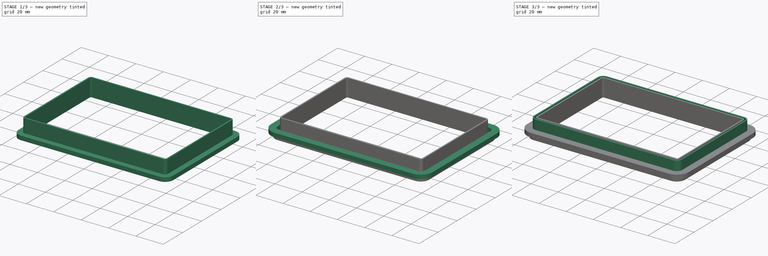
[diagram: build sequence overview — one tinted view per stage of 3, left to right]
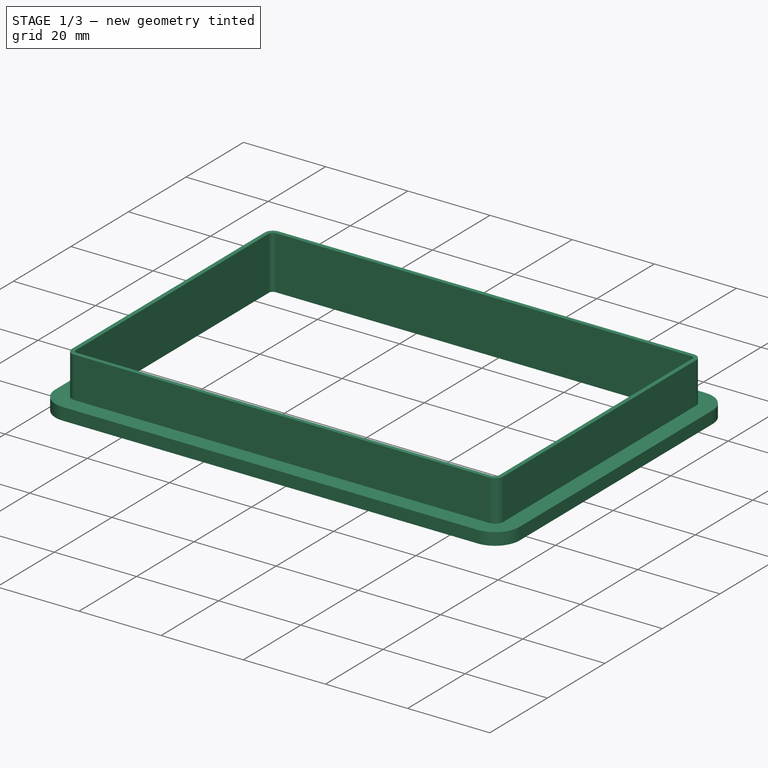
[diagram: stage 1 of 3 — iso view after this stage's code; geometry added in this stage tinted green]
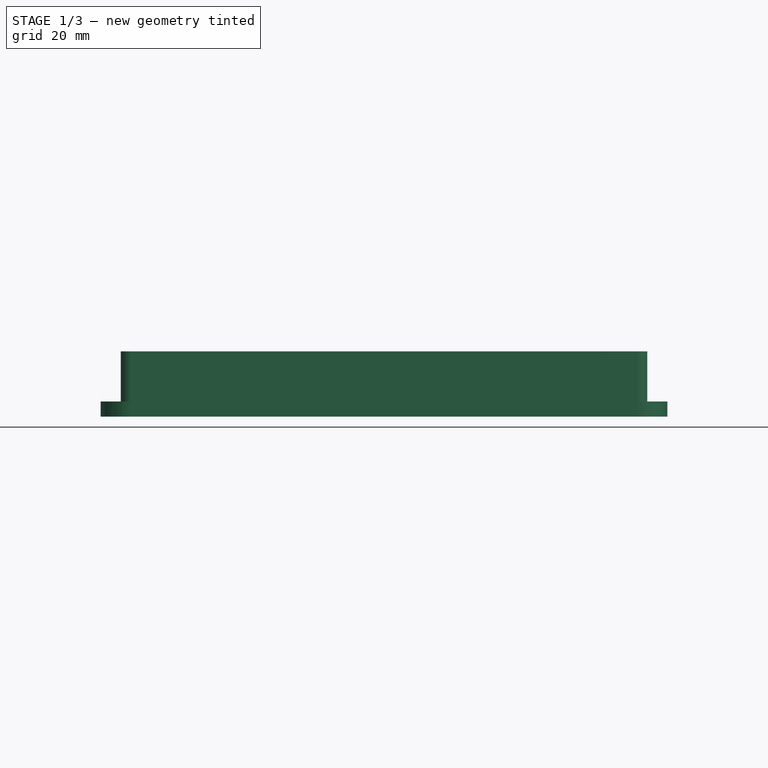
[diagram: stage 1 of 3 — front view after this stage's code; geometry added in this stage tinted green]
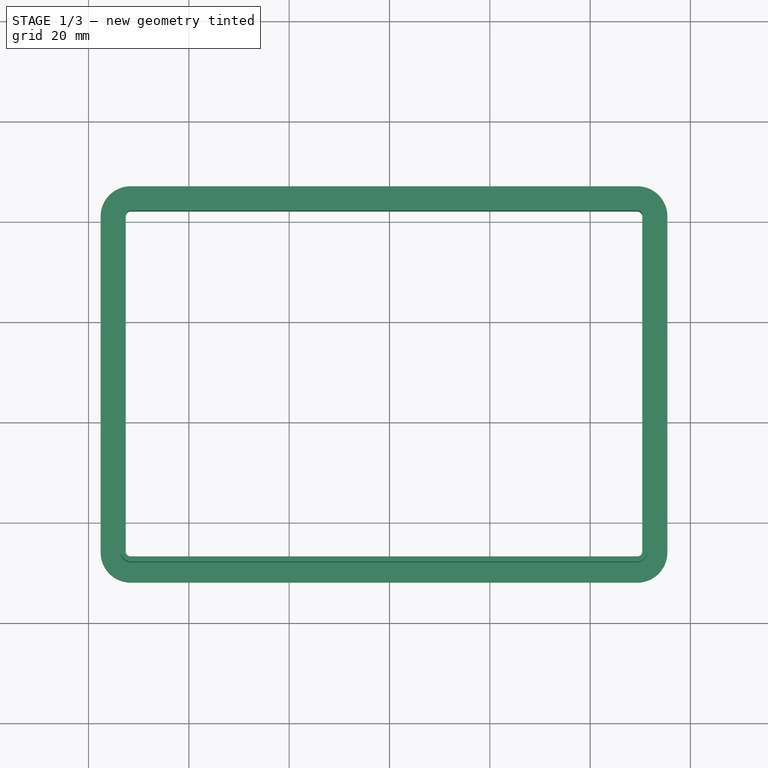
[diagram: stage 1 of 3 — top view after this stage's code; geometry added in this stage tinted green]
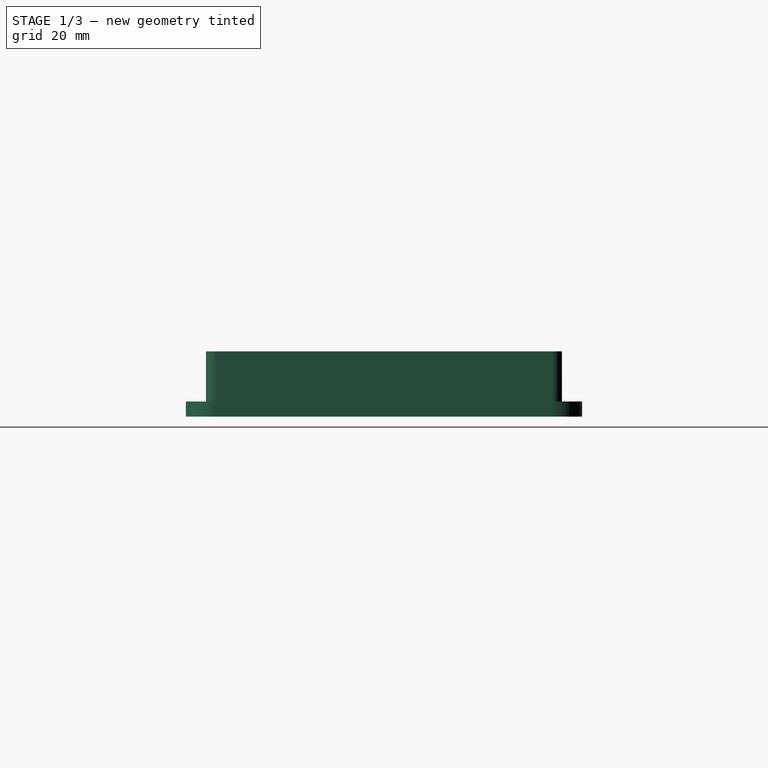
[diagram: stage 1 of 3 — right view after this stage's code; geometry added in this stage tinted green]
FCSTD DOCUMENT  (FreeCAD 1.0R39109 (Git))
Label: CubiertaEnchufeBano
License: All rights reserved
LicenseURL: http://en.wikipedia.org/wiki/All_rights_reserved
objects: Sketcher::SketchObject×12, PartDesign::Pad×4, Part::Offset2D×3, PartDesign::Body×2, PartDesign::Pocket×1
note: 44 computed .brp shape members not serialized (recipe doc carries the construction recipe); baked Part::Feature solids carry a one-line shape summary decoded from their .brp

FEATURE [PartDesign::Body] Body
  AllowCompound = false
  Group = -> [Sketch,Sketch001,Sketch002,Sketch003,Sketch004,Pad,Sketch005,Pad001,Pocket]
  Origin = -> Origin
  Tip = -> Pocket
FEATURE [Part::Offset2D] Offset2D
  Fill = false
  Intersection = false
  Join = 0
  Mode = 1
  SelfIntersection = false
  Source = -> Sketch003
  Value = -2
FEATURE [Sketcher::SketchObject] Sketch006
  ArcFitTolerance = 1e-06
  FullyConstrained = false
  MakeInternals = false
  sketch-geometry (8):
    g0: LineSegment StartX=-33.5962 StartY=41.1063 StartZ=0 EndX=-33.5962 EndY=-25.8937 EndZ=0
    g1: ArcOfCircle CenterX=-31.5962 CenterY=-25.8937 CenterZ=0 NormalX=0 NormalY=0 NormalZ=1 AngleXU=0 Radius=2 StartAngle=3.14159 EndAngle=4.71239
    g2: LineSegment StartX=-31.5962 StartY=-27.8937 StartZ=0 EndX=69.4038 EndY=-27.8937 EndZ=0
    g3: ArcOfCircle CenterX=69.4038 CenterY=-25.8937 CenterZ=0 NormalX=0 NormalY=0 NormalZ=1 AngleXU=0 Radius=2 StartAngle=4.71239 EndAngle=6.28319
    g4: LineSegment StartX=71.4038 StartY=-25.8937 StartZ=0 EndX=71.4038 EndY=41.1063 EndZ=0
    g5: ArcOfCircle CenterX=69.4038 CenterY=41.1063 CenterZ=0 NormalX=0 NormalY=0 NormalZ=1 AngleXU=0 Radius=2 StartAngle=0 EndAngle=1.5708
    g6: LineSegment StartX=69.4038 StartY=43.1063 StartZ=0 EndX=-31.5962 EndY=43.1063 EndZ=0
    g7: ArcOfCircle CenterX=-31.5962 CenterY=41.1063 CenterZ=0 NormalX=0 NormalY=0 NormalZ=1 AngleXU=0 Radius=2 StartAngle=1.5708 EndAngle=3.14159
  constraints (12):
    c: Vertical(g0)
    c: Coincident(g0,g1)
    c: Coincident(g1,g2)
    c: Horizontal(g2)
    c: Coincident(g2,g3)
    c: Coincident(g3,g4)
    c: Vertical(g4)
    c: Coincident(g4,g5)
    c: Coincident(g5,g6)
    c: Horizontal(g6)
    c: Coincident(g6,g7)
    c: Coincident(g7,g0)
FEATURE [Part::Offset2D] Offset2D001
  Fill = false
  Intersection = false
  Join = 0
  Mode = 1
  SelfIntersection = false
  Source = -> Sketch006
  Value = -1
FEATURE [Sketcher::SketchObject] Sketch007
  ArcFitTolerance = 1e-06
  FullyConstrained = false
  MakeInternals = false
  sketch-geometry (8):
    g0: LineSegment StartX=-33.5962 StartY=41.1063 StartZ=0 EndX=-33.5962 EndY=-25.8937 EndZ=0
    g1: ArcOfCircle CenterX=-31.5962 CenterY=-25.8937 CenterZ=0 NormalX=0 NormalY=0 NormalZ=1 AngleXU=0 Radius=2 StartAngle=3.14159 EndAngle=4.71239
    g2: LineSegment StartX=-31.5962 StartY=-27.8937 StartZ=0 EndX=69.4038 EndY=-27.8937 EndZ=0
    g3: ArcOfCircle CenterX=69.4038 CenterY=-25.8937 CenterZ=0 NormalX=0 NormalY=0 NormalZ=1 AngleXU=0 Radius=2 StartAngle=4.71239 EndAngle=6.28319
    g4: LineSegment StartX=71.4038 StartY=-25.8937 StartZ=0 EndX=71.4038 EndY=41.1063 EndZ=0
    g5: ArcOfCircle CenterX=69.4038 CenterY=41.1063 CenterZ=0 NormalX=0 NormalY=0 NormalZ=1 AngleXU=0 Radius=2 StartAngle=0 EndAngle=1.5708
    g6: LineSegment StartX=69.4038 StartY=43.1063 StartZ=0 EndX=-31.5962 EndY=43.1063 EndZ=0
    g7: ArcOfCircle CenterX=-31.5962 CenterY=41.1063 CenterZ=0 NormalX=0 NormalY=0 NormalZ=1 AngleXU=0 Radius=2 StartAngle=1.5708 EndAngle=3.14159
  constraints (12):
    c: Vertical(g0)
    c: Coincident(g0,g1)
    c: Coincident(g1,g2)
    c: Horizontal(g2)
    c: Coincident(g2,g3)
    c: Coincident(g3,g4)
    c: Vertical(g4)
    c: Coincident(g4,g5)
    c: Coincident(g5,g6)
    c: Horizontal(g6)
    c: Coincident(g6,g7)
    c: Coincident(g7,g0)
FEATURE [Sketcher::SketchObject] Sketch008
  ArcFitTolerance = 1e-06
  FullyConstrained = false
  MakeInternals = false
  sketch-geometry (8):
    g0: LineSegment StartX=-32.5962 StartY=41.1063 StartZ=0 EndX=-32.5962 EndY=-25.8937 EndZ=0
    g1: ArcOfCircle CenterX=-31.5962 CenterY=-25.8937 CenterZ=0 NormalX=0 NormalY=0 NormalZ=1 AngleXU=0 Radius=1 StartAngle=3.14159 EndAngle=4.71239
    g2: LineSegment StartX=-31.5962 StartY=-26.8937 StartZ=0 EndX=69.4038 EndY=-26.8937 EndZ=0
    g3: ArcOfCircle CenterX=69.4038 CenterY=-25.8937 CenterZ=0 NormalX=0 NormalY=0 NormalZ=1 AngleXU=0 Radius=1 StartAngle=4.71239 EndAngle=6.28319
    g4: LineSegment StartX=70.4038 StartY=-25.8937 StartZ=0 EndX=70.4038 EndY=41.1063 EndZ=0
    g5: ArcOfCircle CenterX=69.4038 CenterY=41.1063 CenterZ=0 NormalX=0 NormalY=0 NormalZ=1 AngleXU=0 Radius=1 StartAngle=0 EndAngle=1.5708
    g6: LineSegment StartX=69.4038 StartY=42.1063 StartZ=0 EndX=-31.5962 EndY=42.1063 EndZ=0
    g7: ArcOfCircle CenterX=-31.5962 CenterY=41.1063 CenterZ=0 NormalX=0 NormalY=0 NormalZ=1 AngleXU=0 Radius=1 StartAngle=1.5708 EndAngle=3.14159
  constraints (12):
    c: Vertical(g0)
    c: Coincident(g0,g1)
    c: Coincident(g1,g2)
    c: Horizontal(g2)
    c: Coincident(g2,g3)
    c: Coincident(g3,g4)
    c: Vertical(g4)
    c: Coincident(g4,g5)
    c: Coincident(g5,g6)
    c: Horizontal(g6)
    c: Coincident(g6,g7)
    c: Coincident(g7,g0)
FEATURE [Sketcher::SketchObject] Sketch009
  ArcFitTolerance = 1e-06
  FullyConstrained = false
  MakeInternals = false
  sketch-geometry (16):
    g0: LineSegment StartX=-33.5962 StartY=41.1063 StartZ=0 EndX=-33.5962 EndY=-25.8937 EndZ=0
    g1: ArcOfCircle CenterX=-31.5962 CenterY=-25.8937 CenterZ=0 NormalX=0 NormalY=0 NormalZ=1 AngleXU=0 Radius=2 StartAngle=3.14159 EndAngle=4.71239
    g2: LineSegment StartX=-31.5962 StartY=-27.8937 StartZ=0 EndX=69.4038 EndY=-27.8937 EndZ=0
    g3: ArcOfCircle CenterX=69.4038 CenterY=-25.8937 CenterZ=0 NormalX=0 NormalY=0 NormalZ=1 AngleXU=0 Radius=2 StartAngle=4.71239 EndAngle=6.28319
    g4: LineSegment StartX=71.4038 StartY=-25.8937 StartZ=0 EndX=71.4038 EndY=41.1063 EndZ=0
    g5: ArcOfCircle CenterX=69.4038 CenterY=41.1063 CenterZ=0 NormalX=0 NormalY=0 NormalZ=1 AngleXU=0 Radius=2 StartAngle=0 EndAngle=1.5708
    g6: LineSegment StartX=69.4038 StartY=43.1063 StartZ=0 EndX=-31.5962 EndY=43.1063 EndZ=0
    g7: ArcOfCircle CenterX=-31.5962 CenterY=41.1063 CenterZ=0 NormalX=0 NormalY=0 NormalZ=1 AngleXU=0 Radius=2 StartAngle=1.5708 EndAngle=3.14159
    g8: LineSegment StartX=-32.5962 StartY=41.1063 StartZ=0 EndX=-32.5962 EndY=-25.8937 EndZ=0
    g9: ArcOfCircle CenterX=-31.5962 CenterY=-25.8937 CenterZ=0 NormalX=0 NormalY=0 NormalZ=1 AngleXU=0 Radius=1 StartAngle=3.14159 EndAngle=4.71239
    g10: LineSegment StartX=-31.5962 StartY=-26.8937 StartZ=0 EndX=69.4038 EndY=-26.8937 EndZ=0
    g11: ArcOfCircle CenterX=69.4038 CenterY=-25.8937 CenterZ=0 NormalX=0 NormalY=0 NormalZ=1 AngleXU=0 Radius=1 StartAngle=4.71239 EndAngle=6.28319
    g12: LineSegment StartX=70.4038 StartY=-25.8937 StartZ=0 EndX=70.4038 EndY=41.1063 EndZ=0
    g13: ArcOfCircle CenterX=69.4038 CenterY=41.1063 CenterZ=0 NormalX=0 NormalY=0 NormalZ=1 AngleXU=0 Radius=1 StartAngle=0 EndAngle=1.5708
    g14: LineSegment StartX=69.4038 StartY=42.1063 StartZ=0 EndX=-31.5962 EndY=42.1063 EndZ=0
    g15: ArcOfCircle CenterX=-31.5962 CenterY=41.1063 CenterZ=0 NormalX=0 NormalY=0 NormalZ=1 AngleXU=0 Radius=1 StartAngle=1.5708 EndAngle=3.14159
  constraints (24):
    c: Vertical(g0)
    c: Coincident(g0,g1)
    c: Coincident(g1,g2)
    c: Horizontal(g2)
    c: Coincident(g2,g3)
    c: Coincident(g3,g4)
    c: Vertical(g4)
    c: Coincident(g4,g5)
    c: Coincident(g5,g6)
    c: Horizontal(g6)
    c: Coincident(g6,g7)
    c: Coincident(g7,g0)
    c: Vertical(g8)
    c: Coincident(g8,g9)
    c: Coincident(g9,g10)
    c: Horizontal(g10)
    c: Coincident(g10,g11)
    c: Coincident(g11,g12)
    c: Vertical(g12)
    c: Coincident(g12,g13)
    c: Coincident(g13,g14)
    c: Horizontal(g14)
    c: Coincident(g14,g15)
    c: Coincident(g15,g8)
FEATURE [PartDesign::Pad] Pad002
  Direction = (0,0,1)
  Length = 10
  Length2 = 10
  Profile = -> Sketch009
  ReferenceAxis = -> Sketch009 [N_Axis]
  Suppressed = false
  Type = 0
FEATURE [Part::Offset2D] Offset2D002
  Fill = false
  Intersection = false
  Join = 0
  Mode = 1
  SelfIntersection = false
  Source = -> Sketch008
  Value = 5
FEATURE [Sketcher::SketchObject] Sketch010
  ArcFitTolerance = 1e-06
  FullyConstrained = false
  MakeInternals = false
  sketch-geometry (8):
    g0: LineSegment StartX=-37.5962 StartY=41.1063 StartZ=0 EndX=-37.5962 EndY=-25.8937 EndZ=0
    g1: ArcOfCircle CenterX=-31.5962 CenterY=-25.8937 CenterZ=0 NormalX=0 NormalY=0 NormalZ=1 AngleXU=0 Radius=6 StartAngle=3.14159 EndAngle=4.71239
    g2: LineSegment StartX=-31.5962 StartY=-31.8937 StartZ=0 EndX=69.4038 EndY=-31.8937 EndZ=0
    g3: ArcOfCircle CenterX=69.4038 CenterY=-25.8937 CenterZ=0 NormalX=0 NormalY=0 NormalZ=1 AngleXU=0 Radius=6 StartAngle=4.71239 EndAngle=6.28319
    g4: LineSegment StartX=75.4038 StartY=-25.8937 StartZ=0 EndX=75.4038 EndY=41.1063 EndZ=0
    g5: ArcOfCircle CenterX=69.4038 CenterY=41.1063 CenterZ=0 NormalX=0 NormalY=0 NormalZ=1 AngleXU=0 Radius=6 StartAngle=0 EndAngle=1.5708
    g6: LineSegment StartX=69.4038 StartY=47.1063 StartZ=0 EndX=-31.5962 EndY=47.1063 EndZ=0
    g7: ArcOfCircle CenterX=-31.5962 CenterY=41.1063 CenterZ=0 NormalX=0 NormalY=0 NormalZ=1 AngleXU=0 Radius=6 StartAngle=1.5708 EndAngle=3.14159
  constraints (12):
    c: Vertical(g0)
    c: Coincident(g0,g1)
    c: Coincident(g1,g2)
    c: Horizontal(g2)
    c: Coincident(g2,g3)
    c: Coincident(g3,g4)
    c: Vertical(g4)
    c: Coincident(g4,g5)
    c: Coincident(g5,g6)
    c: Horizontal(g6)
    c: Coincident(g6,g7)
    c: Coincident(g7,g0)
FEATURE [Sketcher::SketchObject] Sketch011
  ArcFitTolerance = 1e-06
  FullyConstrained = false
  MakeInternals = false
  sketch-geometry (16):
    g0: LineSegment StartX=-32.5962 StartY=41.1063 StartZ=0 EndX=-32.5962 EndY=-25.8937 EndZ=0
    g1: ArcOfCircle CenterX=-31.5962 CenterY=-25.8937 CenterZ=0 NormalX=0 NormalY=0 NormalZ=1 AngleXU=0 Radius=1 StartAngle=3.14159 EndAngle=4.71239
    g2: LineSegment StartX=-31.5962 StartY=-26.8937 StartZ=0 EndX=69.4038 EndY=-26.8937 EndZ=0
    g3: ArcOfCircle CenterX=69.4038 CenterY=-25.8937 CenterZ=0 NormalX=0 NormalY=0 NormalZ=1 AngleXU=0 Radius=1 StartAngle=4.71239 EndAngle=6.28319
    g4: LineSegment StartX=70.4038 StartY=-25.8937 StartZ=0 EndX=70.4038 EndY=41.1063 EndZ=0
    g5: ArcOfCircle CenterX=69.4038 CenterY=41.1063 CenterZ=0 NormalX=0 NormalY=0 NormalZ=1 AngleXU=0 Radius=1 StartAngle=0 EndAngle=1.5708
    g6: LineSegment StartX=69.4038 StartY=42.1063 StartZ=0 EndX=-31.5962 EndY=42.1063 EndZ=0
    g7: ArcOfCircle CenterX=-31.5962 CenterY=41.1063 CenterZ=0 NormalX=0 NormalY=0 NormalZ=1 AngleXU=0 Radius=1 StartAngle=1.5708 EndAngle=3.14159
    g8: LineSegment StartX=-37.5962 StartY=41.1063 StartZ=0 EndX=-37.5962 EndY=-25.8937 EndZ=0
    g9: ArcOfCircle CenterX=-31.5962 CenterY=-25.8937 CenterZ=0 NormalX=0 NormalY=0 NormalZ=1 AngleXU=0 Radius=6 StartAngle=3.14159 EndAngle=4.71239
    g10: LineSegment StartX=-31.5962 StartY=-31.8937 StartZ=0 EndX=69.4038 EndY=-31.8937 EndZ=0
    g11: ArcOfCircle CenterX=69.4038 CenterY=-25.8937 CenterZ=0 NormalX=0 NormalY=0 NormalZ=1 AngleXU=0 Radius=6 StartAngle=4.71239 EndAngle=6.28319
    g12: LineSegment StartX=75.4038 StartY=-25.8937 StartZ=0 EndX=75.4038 EndY=41.1063 EndZ=0
    g13: ArcOfCircle CenterX=69.4038 CenterY=41.1063 CenterZ=0 NormalX=0 NormalY=0 NormalZ=1 AngleXU=0 Radius=6 StartAngle=0 EndAngle=1.5708
    g14: LineSegment StartX=69.4038 StartY=47.1063 StartZ=0 EndX=-31.5962 EndY=47.1063 EndZ=0
    g15: ArcOfCircle CenterX=-31.5962 CenterY=41.1063 CenterZ=0 NormalX=0 NormalY=0 NormalZ=1 AngleXU=0 Radius=6 StartAngle=1.5708 EndAngle=3.14159
  constraints (24):
    c: Vertical(g0)
    c: Coincident(g0,g1)
    c: Coincident(g1,g2)
    c: Horizontal(g2)
    c: Coincident(g2,g3)
    c: Coincident(g3,g4)
    c: Vertical(g4)
    c: Coincident(g4,g5)
    c: Coincident(g5,g6)
    c: Horizontal(g6)
    c: Coincident(g6,g7)
    c: Coincident(g7,g0)
    c: Vertical(g8)
    c: Coincident(g8,g9)
    c: Coincident(g9,g10)
    c: Horizontal(g10)
    c: Coincident(g10,g11)
    c: Coincident(g11,g12)
    c: Vertical(g12)
    c: Coincident(g12,g13)
    c: Coincident(g13,g14)
    c: Horizontal(g14)
    c: Coincident(g14,g15)
    c: Coincident(g15,g8)
FEATURE [PartDesign::Pad] Pad003
  BaseFeature = -> Pad002
  Direction = (0,0,1)
  Length = 3
  Length2 = 10
  Profile = -> Sketch011
  ReferenceAxis = -> Sketch011 [N_Axis]
  Reversed = true
  Suppressed = false
  Type = 0
FEATURE [PartDesign::Body] Body001
  AllowCompound = false
  Group = -> [Sketch009,Pad002,Sketch008,Sketch010,Sketch011,Pad003]
  Origin = -> Origin001
  Tip = -> Pad003
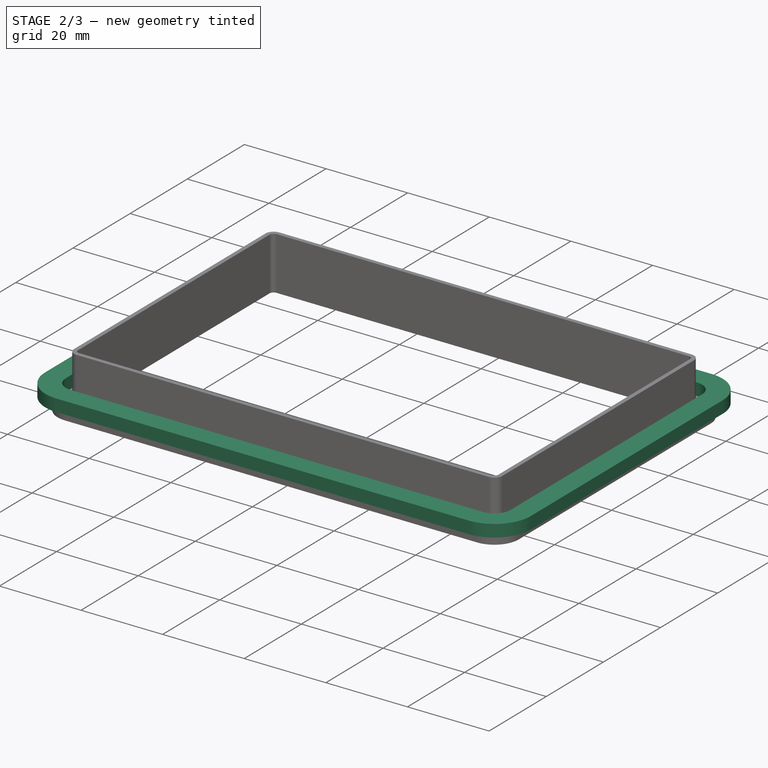
[diagram: stage 2 of 3 — iso view after this stage's code; geometry added in this stage tinted green]
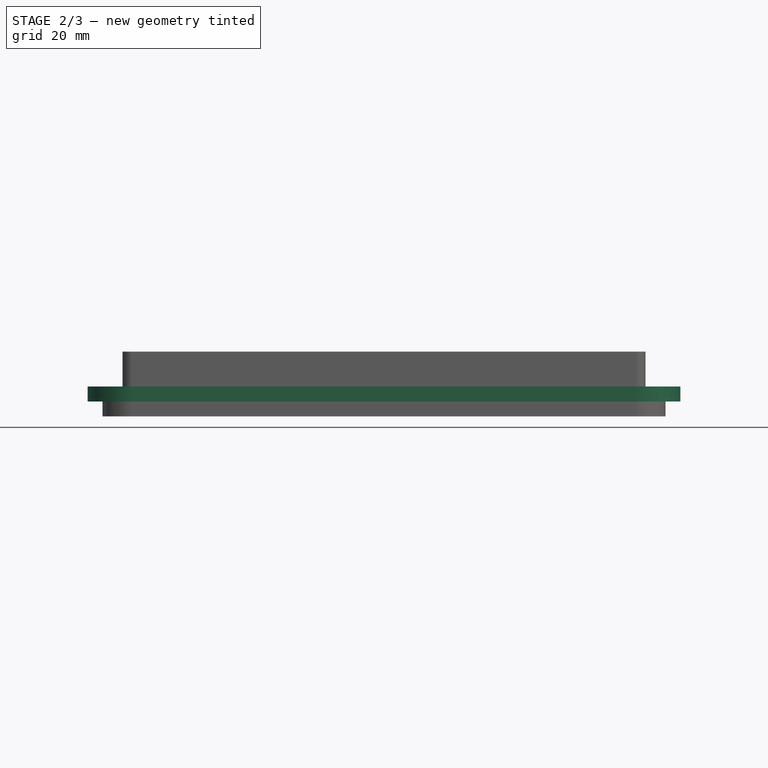
[diagram: stage 2 of 3 — front view after this stage's code; geometry added in this stage tinted green]
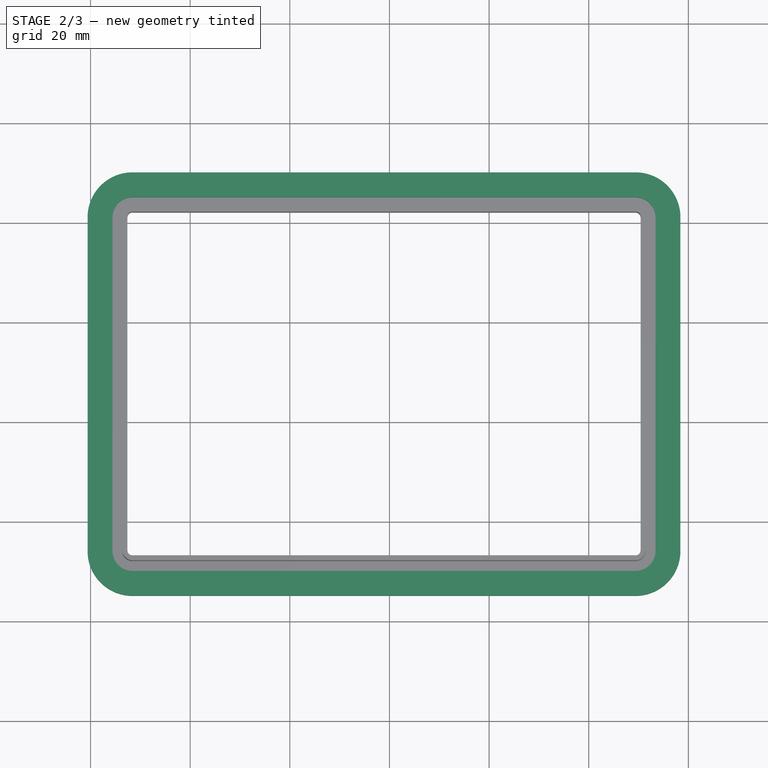
[diagram: stage 2 of 3 — top view after this stage's code; geometry added in this stage tinted green]
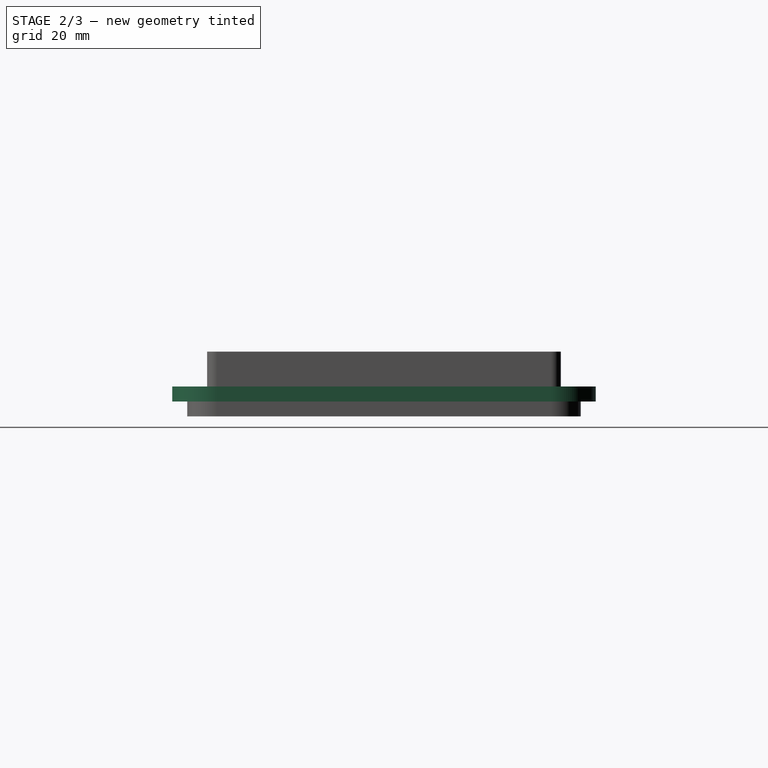
[diagram: stage 2 of 3 — right view after this stage's code; geometry added in this stage tinted green]
FEATURE [Sketcher::SketchObject] Sketch
  ArcFitTolerance = 1e-06
  AttachmentSupport = -> [XY_Plane]
  FullyConstrained = false
  MakeInternals = false
  MapMode = 5
  sketch-geometry (12):
    g0: LineSegment StartX=-36.5962 StartY=41.1063 StartZ=0 EndX=-36.5962 EndY=-25.8937 EndZ=0
    g1: LineSegment StartX=-31.5962 StartY=-30.8937 StartZ=0 EndX=69.4038 EndY=-30.8937 EndZ=0
    g2: LineSegment StartX=74.4038 StartY=-25.8937 StartZ=0 EndX=74.4038 EndY=41.1063 EndZ=0
    g3: LineSegment StartX=69.4038 StartY=46.1063 StartZ=0 EndX=-31.5962 EndY=46.1063 EndZ=0
    g4: ArcOfCircle CenterX=-31.5962 CenterY=41.1063 CenterZ=0 NormalX=0 NormalY=0 NormalZ=1 AngleXU=0 Radius=5 StartAngle=1.5708 EndAngle=3.14159
    g5: ArcOfCircle CenterX=-31.5962 CenterY=-25.8937 CenterZ=0 NormalX=0 NormalY=0 NormalZ=1 AngleXU=0 Radius=5 StartAngle=3.14159 EndAngle=4.71239
    g6: ArcOfCircle CenterX=69.4038 CenterY=-25.8937 CenterZ=0 NormalX=0 NormalY=0 NormalZ=1 AngleXU=0 Radius=5 StartAngle=4.71239 EndAngle=6.28319
    g7: ArcOfCircle CenterX=69.4038 CenterY=41.1063 CenterZ=0 NormalX=0 NormalY=0 NormalZ=1 AngleXU=0 Radius=5 StartAngle=-1.572e-13 EndAngle=1.5708
    g8: GeomPoint [constr] X=-36.5962 Y=46.1063 Z=0
    g9: GeomPoint [constr] X=74.4038 Y=-30.8937 Z=0
    g10: LineSegment [constr] StartX=18.9038 StartY=46.1063 StartZ=0 EndX=18.9038 EndY=-30.8937 EndZ=0
    g11: LineSegment [constr] StartX=-36.5962 StartY=7.60632 StartZ=0 EndX=74.4038 EndY=7.60632 EndZ=0
  constraints (26):
    c: Tangent(g0,g4) = -1.5708
    c: Tangent(g0,g5) = -1.5708
    c: Tangent(g1,g5) = -1.5708
    c: Tangent(g1,g6) = -1.5708
    c: Tangent(g2,g6) = -1.5708
    c: Tangent(g2,g7) = -1.5708
    c: Tangent(g3,g7) = -1.5708
    c: Tangent(g3,g4) = -1.5708
    c: Vertical(g0)
    c: Vertical(g2)
    c: Horizontal(g1)
    c: Horizontal(g3)
    c: Equal(g4,g5)
    c: Equal(g5,g6)
    c: Equal(g6,g7)
    c: PointOnObject(g8,g0)
    c: PointOnObject(g8,g3)
    c: PointOnObject(g9,g1)
    c: PointOnObject(g9,g2)
    c: Symmetric(g3,g3,g10)
    c: Symmetric(g1,g1,g10)
    c: Distance(g10) = 77
    c: Symmetric(g0,g0,g11)
    c: Symmetric(g2,g2,g11)
    c: Distance(g11) = 111
    c: Radius(g7) = 5
FEATURE [Sketcher::SketchObject] Sketch001
  ArcFitTolerance = 1e-06
  FullyConstrained = false
  MakeInternals = false
  sketch-geometry (8):
    g0: LineSegment StartX=-37.5962 StartY=41.1063 StartZ=0 EndX=-37.5962 EndY=-25.8937 EndZ=0
    g1: ArcOfCircle CenterX=-31.5962 CenterY=-25.8937 CenterZ=0 NormalX=0 NormalY=0 NormalZ=1 AngleXU=0 Radius=6 StartAngle=3.14159 EndAngle=4.71239
    g2: LineSegment StartX=-31.5962 StartY=-31.8937 StartZ=0 EndX=69.4038 EndY=-31.8937 EndZ=0
    g3: ArcOfCircle CenterX=69.4038 CenterY=-25.8937 CenterZ=0 NormalX=0 NormalY=0 NormalZ=1 AngleXU=0 Radius=6 StartAngle=4.71239 EndAngle=6.28319
    g4: LineSegment StartX=75.4038 StartY=-25.8937 StartZ=0 EndX=75.4038 EndY=41.1063 EndZ=0
    g5: ArcOfCircle CenterX=69.4038 CenterY=41.1063 CenterZ=0 NormalX=0 NormalY=0 NormalZ=1 AngleXU=0 Radius=6 StartAngle=0 EndAngle=1.5708
    g6: LineSegment StartX=69.4038 StartY=47.1063 StartZ=0 EndX=-31.5962 EndY=47.1063 EndZ=0
    g7: ArcOfCircle CenterX=-31.5962 CenterY=41.1063 CenterZ=0 NormalX=0 NormalY=0 NormalZ=1 AngleXU=0 Radius=6 StartAngle=1.5708 EndAngle=3.14159
  constraints (12):
    c: Vertical(g0)
    c: Coincident(g0,g1)
    c: Coincident(g1,g2)
    c: Horizontal(g2)
    c: Coincident(g2,g3)
    c: Coincident(g3,g4)
    c: Vertical(g4)
    c: Coincident(g4,g5)
    c: Coincident(g5,g6)
    c: Horizontal(g6)
    c: Coincident(g6,g7)
    c: Coincident(g7,g0)
FEATURE [Sketcher::SketchObject] Sketch002
  ArcFitTolerance = 1e-06
  FullyConstrained = false
  MakeInternals = false
  sketch-geometry (8):
    g0: LineSegment StartX=-40.5962 StartY=41.1063 StartZ=0 EndX=-40.5962 EndY=-25.8937 EndZ=0
    g1: ArcOfCircle CenterX=-31.5962 CenterY=-25.8937 CenterZ=0 NormalX=0 NormalY=0 NormalZ=1 AngleXU=0 Radius=9 StartAngle=3.14159 EndAngle=4.71239
    g2: LineSegment StartX=-31.5962 StartY=-34.8937 StartZ=0 EndX=69.4038 EndY=-34.8937 EndZ=0
    g3: ArcOfCircle CenterX=69.4038 CenterY=-25.8937 CenterZ=0 NormalX=0 NormalY=0 NormalZ=1 AngleXU=0 Radius=9 StartAngle=4.71239 EndAngle=6.28319
    g4: LineSegment StartX=78.4038 StartY=-25.8937 StartZ=0 EndX=78.4038 EndY=41.1063 EndZ=0
    g5: ArcOfCircle CenterX=69.4038 CenterY=41.1063 CenterZ=0 NormalX=0 NormalY=0 NormalZ=1 AngleXU=0 Radius=9 StartAngle=0 EndAngle=1.5708
    g6: LineSegment StartX=69.4038 StartY=50.1063 StartZ=0 EndX=-31.5962 EndY=50.1063 EndZ=0
    g7: ArcOfCircle CenterX=-31.5962 CenterY=41.1063 CenterZ=0 NormalX=0 NormalY=0 NormalZ=1 AngleXU=0 Radius=9 StartAngle=1.5708 EndAngle=3.14159
  constraints (12):
    c: Vertical(g0)
    c: Coincident(g0,g1)
    c: Coincident(g1,g2)
    c: Horizontal(g2)
    c: Coincident(g2,g3)
    c: Coincident(g3,g4)
    c: Vertical(g4)
    c: Coincident(g4,g5)
    c: Coincident(g5,g6)
    c: Horizontal(g6)
    c: Coincident(g6,g7)
    c: Coincident(g7,g0)
FEATURE [Sketcher::SketchObject] Sketch003
  ArcFitTolerance = 1e-06
  FullyConstrained = false
  MakeInternals = false
  sketch-geometry (8):
    g0: LineSegment StartX=-35.5962 StartY=41.1063 StartZ=0 EndX=-35.5962 EndY=-25.8937 EndZ=0
    g1: ArcOfCircle CenterX=-31.5962 CenterY=-25.8937 CenterZ=0 NormalX=0 NormalY=0 NormalZ=1 AngleXU=0 Radius=4 StartAngle=3.14159 EndAngle=4.71239
    g2: LineSegment StartX=-31.5962 StartY=-29.8937 StartZ=0 EndX=69.4038 EndY=-29.8937 EndZ=0
    g3: ArcOfCircle CenterX=69.4038 CenterY=-25.8937 CenterZ=0 NormalX=0 NormalY=0 NormalZ=1 AngleXU=0 Radius=4 StartAngle=4.71239 EndAngle=6.28319
    g4: LineSegment StartX=73.4038 StartY=-25.8937 StartZ=0 EndX=73.4038 EndY=41.1063 EndZ=0
    g5: ArcOfCircle CenterX=69.4038 CenterY=41.1063 CenterZ=0 NormalX=0 NormalY=0 NormalZ=1 AngleXU=0 Radius=4 StartAngle=0 EndAngle=1.5708
    g6: LineSegment StartX=69.4038 StartY=45.1063 StartZ=0 EndX=-31.5962 EndY=45.1063 EndZ=0
    g7: ArcOfCircle CenterX=-31.5962 CenterY=41.1063 CenterZ=0 NormalX=0 NormalY=0 NormalZ=1 AngleXU=0 Radius=4 StartAngle=1.5708 EndAngle=3.14159
  constraints (12):
    c: Vertical(g0)
    c: Coincident(g0,g1)
    c: Coincident(g1,g2)
    c: Horizontal(g2)
    c: Coincident(g2,g3)
    c: Coincident(g3,g4)
    c: Vertical(g4)
    c: Coincident(g4,g5)
    c: Coincident(g5,g6)
    c: Horizontal(g6)
    c: Coincident(g6,g7)
    c: Coincident(g7,g0)
FEATURE [Sketcher::SketchObject] Sketch004
  ArcFitTolerance = 1e-06
  FullyConstrained = false
  MakeInternals = false
  sketch-geometry (16):
    g0: LineSegment StartX=-40.5962 StartY=41.1063 StartZ=0 EndX=-40.5962 EndY=-25.8937 EndZ=0
    g1: ArcOfCircle CenterX=-31.5962 CenterY=-25.8937 CenterZ=0 NormalX=0 NormalY=0 NormalZ=1 AngleXU=0 Radius=9 StartAngle=3.14159 EndAngle=4.71239
    g2: LineSegment StartX=-31.5962 StartY=-34.8937 StartZ=0 EndX=69.4038 EndY=-34.8937 EndZ=0
    g3: ArcOfCircle CenterX=69.4038 CenterY=-25.8937 CenterZ=0 NormalX=0 NormalY=0 NormalZ=1 AngleXU=0 Radius=9 StartAngle=4.71239 EndAngle=6.28319
    g4: LineSegment StartX=78.4038 StartY=-25.8937 StartZ=0 EndX=78.4038 EndY=41.1063 EndZ=0
    g5: ArcOfCircle CenterX=69.4038 CenterY=41.1063 CenterZ=0 NormalX=0 NormalY=0 NormalZ=1 AngleXU=0 Radius=9 StartAngle=0 EndAngle=1.5708
    g6: LineSegment StartX=69.4038 StartY=50.1063 StartZ=0 EndX=-31.5962 EndY=50.1063 EndZ=0
    g7: ArcOfCircle CenterX=-31.5962 CenterY=41.1063 CenterZ=0 NormalX=0 NormalY=0 NormalZ=1 AngleXU=0 Radius=9 StartAngle=1.5708 EndAngle=3.14159
    g8: LineSegment StartX=-35.5962 StartY=41.1063 StartZ=0 EndX=-35.5962 EndY=-25.8937 EndZ=0
    g9: ArcOfCircle CenterX=-31.5962 CenterY=-25.8937 CenterZ=0 NormalX=0 NormalY=0 NormalZ=1 AngleXU=0 Radius=4 StartAngle=3.14159 EndAngle=4.71239
    g10: LineSegment StartX=-31.5962 StartY=-29.8937 StartZ=0 EndX=69.4038 EndY=-29.8937 EndZ=0
    g11: ArcOfCircle CenterX=69.4038 CenterY=-25.8937 CenterZ=0 NormalX=0 NormalY=0 NormalZ=1 AngleXU=0 Radius=4 StartAngle=4.71239 EndAngle=6.28319
    g12: LineSegment StartX=73.4038 StartY=-25.8937 StartZ=0 EndX=73.4038 EndY=41.1063 EndZ=0
    g13: ArcOfCircle CenterX=69.4038 CenterY=41.1063 CenterZ=0 NormalX=0 NormalY=0 NormalZ=1 AngleXU=0 Radius=4 StartAngle=0 EndAngle=1.5708
    g14: LineSegment StartX=69.4038 StartY=45.1063 StartZ=0 EndX=-31.5962 EndY=45.1063 EndZ=0
    g15: ArcOfCircle CenterX=-31.5962 CenterY=41.1063 CenterZ=0 NormalX=0 NormalY=0 NormalZ=1 AngleXU=0 Radius=4 StartAngle=1.5708 EndAngle=3.14159
  constraints (24):
    c: Vertical(g0)
    c: Coincident(g0,g1)
    c: Coincident(g1,g2)
    c: Horizontal(g2)
    c: Coincident(g2,g3)
    c: Coincident(g3,g4)
    c: Vertical(g4)
    c: Coincident(g4,g5)
    c: Coincident(g5,g6)
    c: Horizontal(g6)
    c: Coincident(g6,g7)
    c: Coincident(g7,g0)
    c: Vertical(g8)
    c: Coincident(g8,g9)
    c: Coincident(g9,g10)
    c: Horizontal(g10)
    c: Coincident(g10,g11)
    c: Coincident(g11,g12)
    c: Vertical(g12)
    c: Coincident(g12,g13)
    c: Coincident(g13,g14)
    c: Horizontal(g14)
    c: Coincident(g14,g15)
    c: Coincident(g15,g8)
FEATURE [PartDesign::Pad] Pad
  Direction = (0,0,1)
  Length = 3
  Length2 = 10
  Profile = -> Sketch004
  ReferenceAxis = -> Sketch004 [N_Axis]
  Suppressed = false
  Type = 0
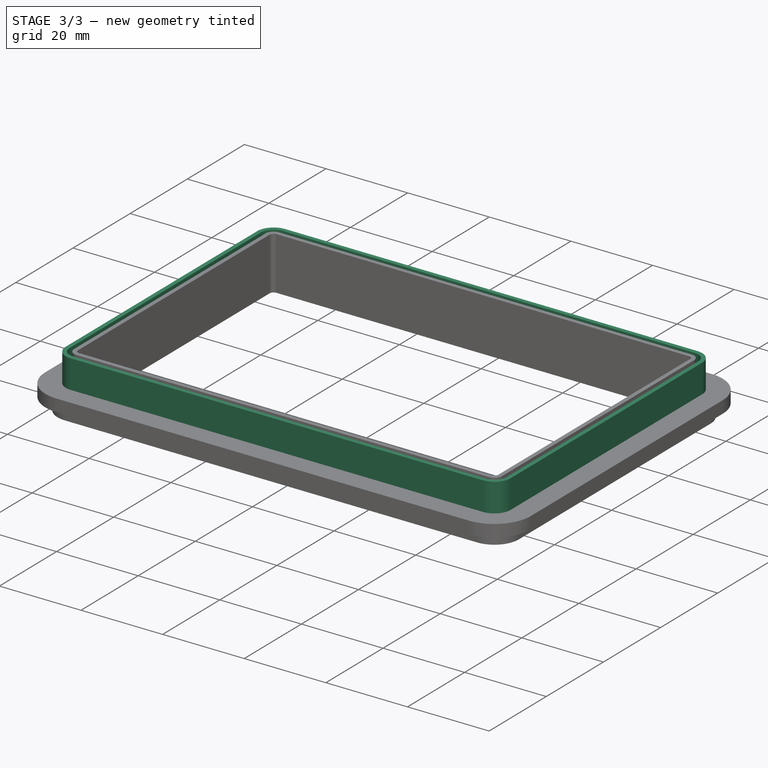
[diagram: stage 3 of 3 — iso view after this stage's code; geometry added in this stage tinted green]
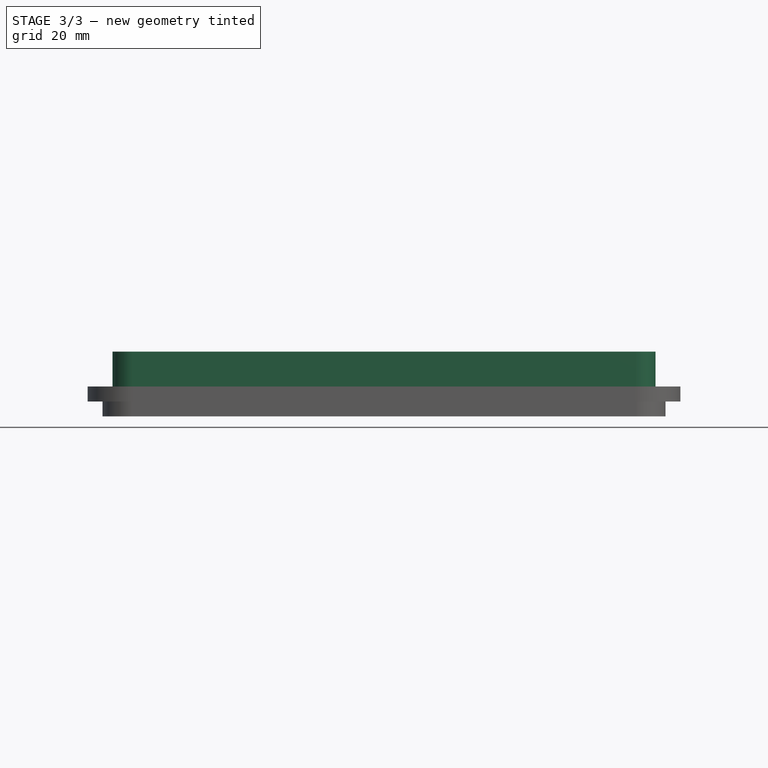
[diagram: stage 3 of 3 — front view after this stage's code; geometry added in this stage tinted green]
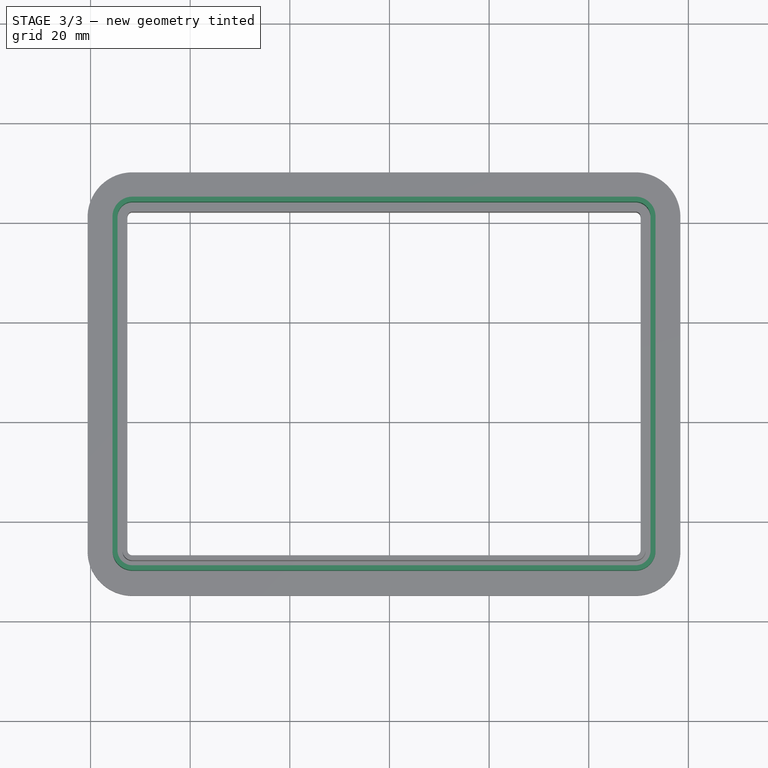
[diagram: stage 3 of 3 — top view after this stage's code; geometry added in this stage tinted green]
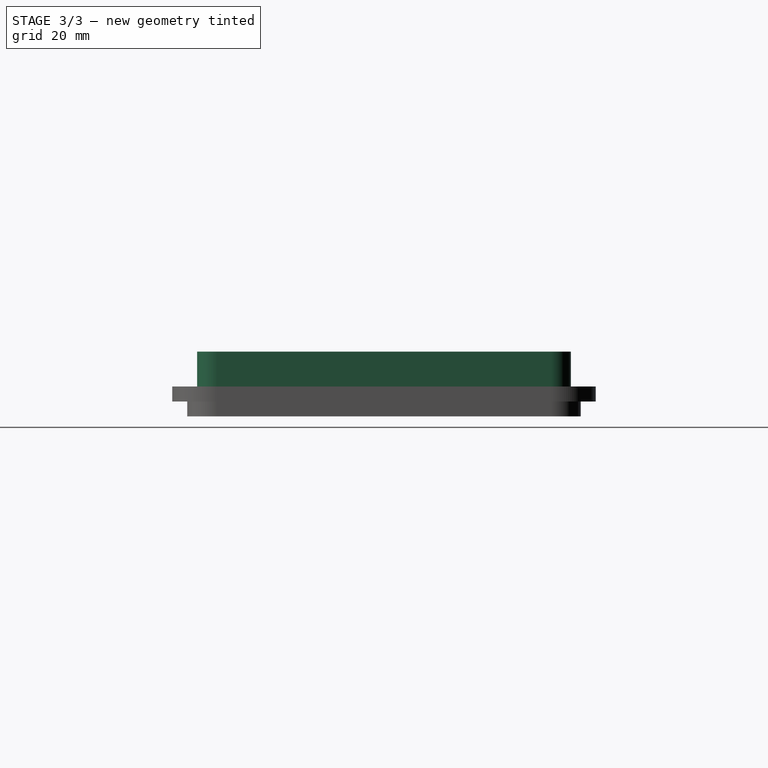
[diagram: stage 3 of 3 — right view after this stage's code; geometry added in this stage tinted green]
FEATURE [Sketcher::SketchObject] Sketch005
  ArcFitTolerance = 1e-06
  FullyConstrained = false
  MakeInternals = false
  Placement = pos=(0,0,0) rot=(0,0,1;3.14159rad)
  sketch-geometry (8):
    g0: LineSegment StartX=34.5962 StartY=-41.1063 StartZ=0 EndX=34.5962 EndY=25.8937 EndZ=0
    g1: ArcOfCircle CenterX=31.5962 CenterY=25.8937 CenterZ=0 NormalX=0 NormalY=0 NormalZ=1 AngleXU=3.14159 Radius=3 StartAngle=3.14159 EndAngle=4.71239
    g2: LineSegment StartX=31.5962 StartY=28.8937 StartZ=0 EndX=-69.4038 EndY=28.8937 EndZ=0
    g3: ArcOfCircle CenterX=-69.4038 CenterY=25.8937 CenterZ=0 NormalX=0 NormalY=0 NormalZ=1 AngleXU=3.14159 Radius=3 StartAngle=4.71239 EndAngle=6.28319
    g4: LineSegment StartX=-72.4038 StartY=25.8937 StartZ=0 EndX=-72.4038 EndY=-41.1063 EndZ=0
    g5: ArcOfCircle CenterX=-69.4038 CenterY=-41.1063 CenterZ=0 NormalX=0 NormalY=0 NormalZ=1 AngleXU=3.14159 Radius=3 StartAngle=0 EndAngle=1.5708
    g6: LineSegment StartX=-69.4038 StartY=-44.1063 StartZ=0 EndX=31.5962 EndY=-44.1063 EndZ=0
    g7: ArcOfCircle CenterX=31.5962 CenterY=-41.1063 CenterZ=0 NormalX=0 NormalY=0 NormalZ=1 AngleXU=3.14159 Radius=3 StartAngle=1.5708 EndAngle=3.14159
  constraints (12):
    c: Vertical(g0)
    c: Coincident(g0,g1)
    c: Coincident(g1,g2)
    c: Horizontal(g2)
    c: Coincident(g2,g3)
    c: Coincident(g3,g4)
    c: Vertical(g4)
    c: Coincident(g4,g5)
    c: Coincident(g5,g6)
    c: Horizontal(g6)
    c: Coincident(g6,g7)
    c: Coincident(g7,g0)
FEATURE [PartDesign::Pad] Pad001
  BaseFeature = -> Pad
  Direction = (0,0,1)
  Length = 10
  Length2 = 10
  Profile = -> Sketch003
  ReferenceAxis = -> Sketch003 [N_Axis]
  Suppressed = false
  Type = 0
FEATURE [PartDesign::Pocket] Pocket
  BaseFeature = -> Pad001
  Direction = (0,0,-1)
  Length = 5
  Length2 = 5
  Profile = -> Sketch005
  ReferenceAxis = -> Sketch005 [N_Axis]
  Reversed = true
  Suppressed = false
  Type = 1
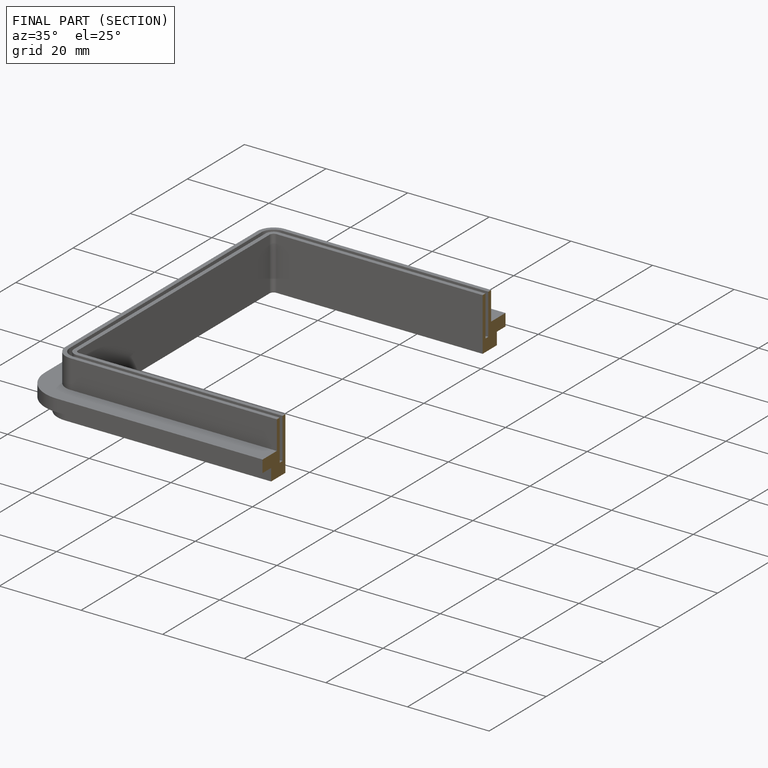
[diagram: finished part — half-section view (interior)]
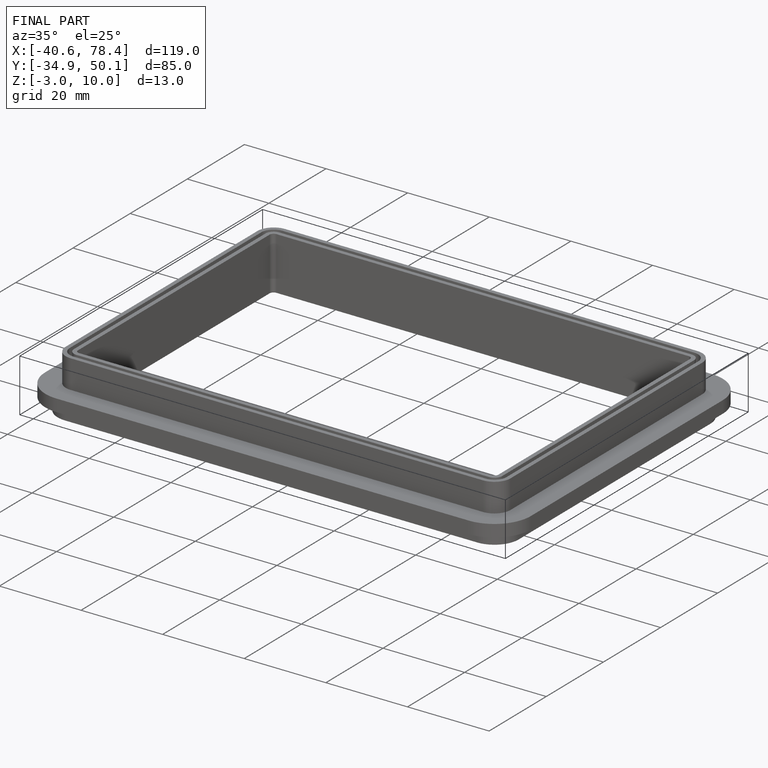
[diagram: finished part — iso view with bounding-box wireframe]
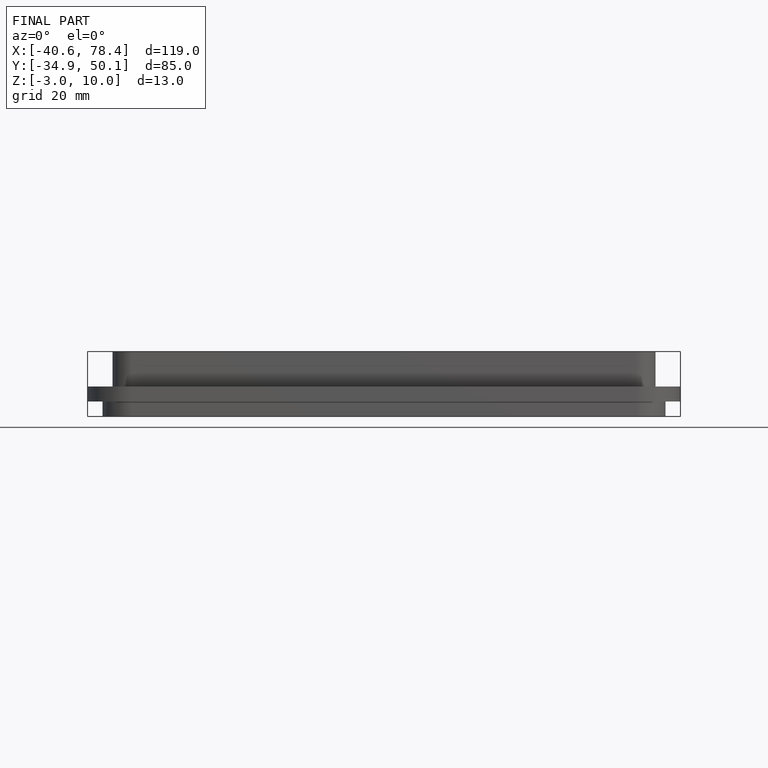
[diagram: finished part — front view with bounding-box wireframe]
